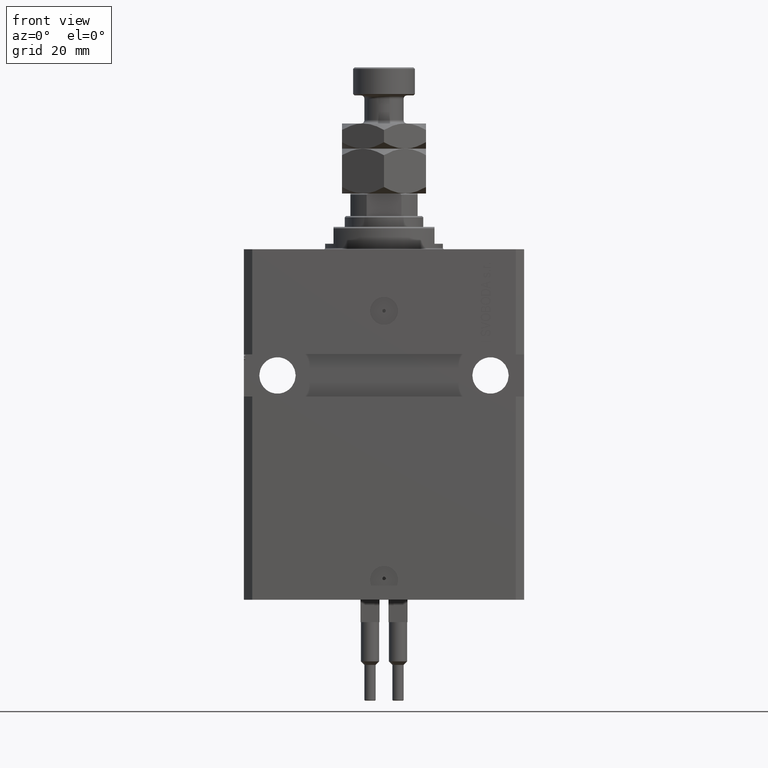
[diagram: clean part render]
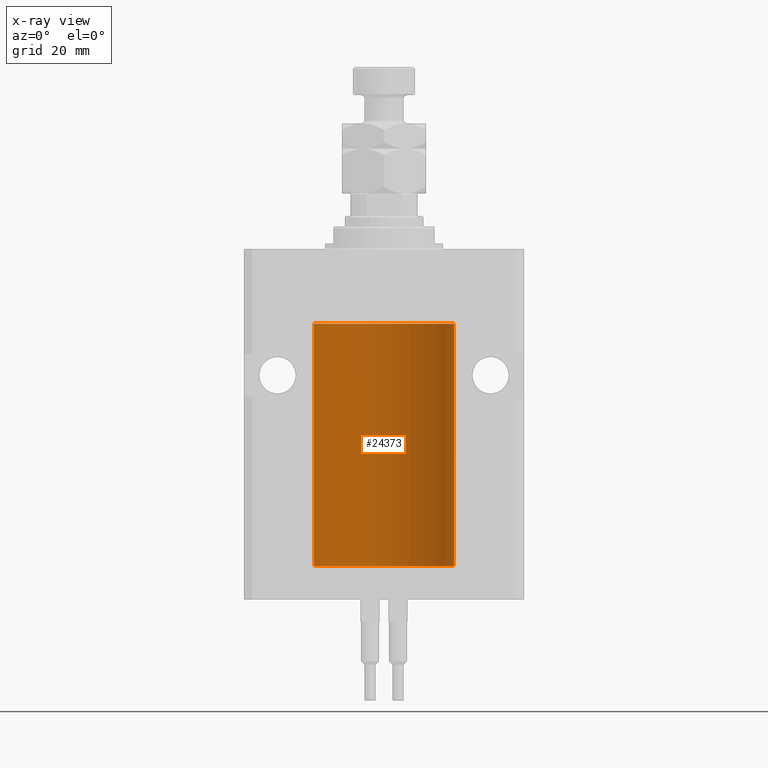
[diagram: x-ray — body ghosted, one internal face saturated and labeled with its STEP entity id]
A machine part, front view, then the same camera in x-ray: the body is ghosted and one INTERNAL B-rep face — a face not visible from any outside direction — is saturated and labeled: STEP entity #24373.
In plain terms, the highlighted cylindrical surface (partial cylindrical patch) has radius 25 mm, axis along (0, 0, 1).
Its self-contained STEP definition (entity closure, byte-faithful):
#28 = CYLINDRICAL_SURFACE ( 'NONE', #37523, 25.00000000000000000 ) ;
#214 = LINE ( 'NONE', #12274, #31589 ) ;
#538 = AXIS2_PLACEMENT_3D ( 'NONE', #3000, #34507, #50151 ) ;
#560 = CARTESIAN_POINT ( 'NONE',  ( 24.99999999999999645, 0.1631302137355208348, -109.8750000000001563 ) ) ;
#1071 = CARTESIAN_POINT ( 'NONE',  ( -25.00000000000000000, 3.061616997868383043E-15, -26.60000000000000142 ) ) ;
#1520 = CARTESIAN_POINT ( 'NONE',  ( -25.00000000000008171, 3.517566575222595158E-13, -111.1250000000032827 ) ) ;
#3000 = CARTESIAN_POINT ( 'NONE',  ( 0.000000000000000000, 0.000000000000000000, -26.60000000000000142 ) ) ;
#3467 = EDGE_CURVE ( 'NONE', #5423, #11215, #46912, .T. ) ;
#3471 = DIRECTION ( 'NONE',  ( 1.000000000000000000, 0.000000000000000000, 0.000000000000000000 ) ) ;
#3481 = CARTESIAN_POINT ( 'NONE',  ( -25.00000000000000000, -2.540720905424995806E-14, -109.8750000000000000 ) ) ;
#3567 = VERTEX_POINT ( 'NONE', #1520 ) ;
#3892 = CARTESIAN_POINT ( 'NONE',  ( 25.00000000000000000, -2.424731304940744339E-15, -111.1250000000000000 ) ) ;
#5423 = VERTEX_POINT ( 'NONE', #44088 ) ;
#6262 = EDGE_CURVE ( 'NONE', #5423, #10489, #11742, .T. ) ;
#6404 = CARTESIAN_POINT ( 'NONE',  ( -25.00000000000008171, 3.517566575222595158E-13, -111.1250000000032827 ) ) ;
#6682 = VECTOR ( 'NONE', #20162, 1000.000000000000000 ) ;
#6993 = VERTEX_POINT ( 'NONE', #3481 ) ;
#7092 = CIRCLE ( 'NONE', #538, 25.00000000000000000 ) ;
#7164 = CARTESIAN_POINT ( 'NONE',  ( -24.99218483271614843, 0.6250578298876445782, -110.6628443277814426 ) ) ;
#7247 = CARTESIAN_POINT ( 'NONE',  ( 25.00000000000008171, 3.486950403907965962E-13, -109.8749999999967315 ) ) ;
#7843 = CARTESIAN_POINT ( 'NONE',  ( 0.000000000000000000, 0.000000000000000000, -113.0999999999999943 ) ) ;
#7970 = DIRECTION ( 'NONE',  ( -0.000000000000000000, -0.000000000000000000, 1.000000000000000000 ) ) ;
#8572 = DIRECTION ( 'NONE',  ( -0.000000000000000000, -0.000000000000000000, 1.000000000000000000 ) ) ;
#10489 = VERTEX_POINT ( 'NONE', #18144 ) ;
#11020 = ORIENTED_EDGE ( 'NONE', *, *, #19414, .T. ) ;
#11215 = VERTEX_POINT ( 'NONE', #50493 ) ;
#11348 = CARTESIAN_POINT ( 'NONE',  ( 24.99812887437770570, 0.3150953964769092064, -111.0459460934856821 ) ) ;
#11742 = CIRCLE ( 'NONE', #39526, 25.00000000000000000 ) ;
#11862 = CARTESIAN_POINT ( 'NONE',  ( 24.99218627891524136, 0.6250000000003219647, -110.6631061550482826 ) ) ;
#12274 = CARTESIAN_POINT ( 'NONE',  ( -25.00000000000000000, 3.061616997868383043E-15, -113.0999999999999943 ) ) ;
#13550 = ORIENTED_EDGE ( 'NONE', *, *, #39318, .T. ) ;
#18079 = CARTESIAN_POINT ( 'NONE',  ( 25.00000000000000000, 0.000000000000000000, -26.60000000000000142 ) ) ;
#18144 = CARTESIAN_POINT ( 'NONE',  ( -25.00000000000000000, 3.061616997868383043E-15, -113.0999999999999943 ) ) ;
#18230 = EDGE_CURVE ( 'NONE', #10489, #3567, #214, .T. ) ;
#19165 = EDGE_CURVE ( 'NONE', #11215, #30935, #42016, .T. ) ;
#19298 = CARTESIAN_POINT ( 'NONE',  ( 24.99815573945175373, 0.3253059702579679247, -109.9414084843269279 ) ) ;
#19409 = CARTESIAN_POINT ( 'NONE',  ( -25.00000000000000000, 3.061616997868383043E-15, -113.0999999999999943 ) ) ;
#19414 = EDGE_CURVE ( 'NONE', #29174, #47754, #7092, .T. ) ;
#19467 = ORIENTED_EDGE ( 'NONE', *, *, #44779, .F. ) ;
#19703 = DIRECTION ( 'NONE',  ( -0.000000000000000000, -0.000000000000000000, 1.000000000000000000 ) ) ;
#19769 = FACE_OUTER_BOUND ( 'NONE', #50517, .T. ) ;
#19840 = VERTEX_POINT ( 'NONE', #22710 ) ;
#20042 = CARTESIAN_POINT ( 'NONE',  ( 24.99403021173655404, 0.5586305782632625672, -110.1747611144148635 ) ) ;
#20162 = DIRECTION ( 'NONE',  ( -0.000000000000000000, -0.000000000000000000, 1.000000000000000000 ) ) ;
#20283 = CARTESIAN_POINT ( 'NONE',  ( 24.99957883295564187, 0.1636780489658792026, -111.1087296133423479 ) ) ;
#22710 = CARTESIAN_POINT ( 'NONE',  ( 25.00000000000008171, 3.486950403907965962E-13, -109.8749999999967315 ) ) ;
#23237 = ORIENTED_EDGE ( 'NONE', *, *, #27291, .T. ) ;
#23382 = CARTESIAN_POINT ( 'NONE',  ( 24.99711042419772511, 0.3844422150124162108, -110.9994823321251971 ) ) ;
#23637 = CARTESIAN_POINT ( 'NONE',  ( 24.99405112861447265, 0.5574133879603476727, -110.8263877786898064 ) ) ;
#24004 = ORIENTED_EDGE ( 'NONE', *, *, #19165, .T. ) ;
#24373 = ADVANCED_FACE ( 'NONE', ( #19769 ), #28, .F. ) ;
#26388 = CARTESIAN_POINT ( 'NONE',  ( -24.99711159039963704, 0.3843660423108738455, -110.0004619305507561 ) ) ;
#26705 = CARTESIAN_POINT ( 'NONE',  ( 0.000000000000000000, 0.000000000000000000, -113.0999999999999943 ) ) ;
#26892 = CARTESIAN_POINT ( 'NONE',  ( -25.00000000000000000, 0.08259386895069686929, -109.8749999999999574 ) ) ;
#27291 = EDGE_CURVE ( 'NONE', #19840, #29174, #28033, .T. ) ;
#28033 = LINE ( 'NONE', #43651, #45698 ) ;
#29174 = VERTEX_POINT ( 'NONE', #18079 ) ;
#29428 = CARTESIAN_POINT ( 'NONE',  ( 24.99218627891505307, 0.6250000000082391871, -110.4999999999990763 ) ) ;
#30467 = CARTESIAN_POINT ( 'NONE',  ( -25.00000000000000000, -2.540720905424995806E-14, -109.8750000000000000 ) ) ;
#30935 = VERTEX_POINT ( 'NONE', #29428 ) ;
#30981 = CARTESIAN_POINT ( 'NONE',  ( -24.99999999999998579, 0.1631672031814571655, -111.1249999999998153 ) ) ;
#31040 = DIRECTION ( 'NONE',  ( -0.000000000000000000, -0.000000000000000000, 1.000000000000000000 ) ) ;
#31589 = VECTOR ( 'NONE', #19703, 1000.000000000000000 ) ;
#33206 = ORIENTED_EDGE ( 'NONE', *, *, #18230, .F. ) ;
#33501 = B_SPLINE_CURVE_WITH_KNOTS ( 'NONE', 3,
 ( #30467, #26892, #42506, #45856, #26388, #46113, #42253, #7164, #34818, #50466, #30981, #6404 ),
 .UNSPECIFIED., .F., .F.,
 ( 4, 2, 2, 2, 2, 4 ),
 ( 1.767227884924492832E-18, 0.0002442639708601802699, 0.0004885279417203586966, 0.0009770558834406861681, 0.001465583825161013640, 0.001954111766881341111 ),
 .UNSPECIFIED. ) ;
#34507 = DIRECTION ( 'NONE',  ( 0.000000000000000000, 0.000000000000000000, 1.000000000000000000 ) ) ;
#34818 = CARTESIAN_POINT ( 'NONE',  ( -24.99402840204668408, 0.5587119681668493154, -110.8251155587110475 ) ) ;
#34898 = CARTESIAN_POINT ( 'NONE',  ( 24.99218627891505307, 0.6250000000082391871, -110.4999999999990763 ) ) ;
#35368 = DIRECTION ( 'NONE',  ( 1.000000000000000000, 0.000000000000000000, 0.000000000000000000 ) ) ;
#35386 = CARTESIAN_POINT ( 'NONE',  ( 24.99218627891505307, 0.6250000000082391871, -110.4999999999990763 ) ) ;
#37522 = ORIENTED_EDGE ( 'NONE', *, *, #3467, .T. ) ;
#37523 = AXIS2_PLACEMENT_3D ( 'NONE', #26705, #31040, #35368 ) ;
#38305 = DIRECTION ( 'NONE',  ( 0.000000000000000000, 0.000000000000000000, 1.000000000000000000 ) ) ;
#39318 = EDGE_CURVE ( 'NONE', #30935, #19840, #47343, .T. ) ;
#39526 = AXIS2_PLACEMENT_3D ( 'NONE', #7843, #38305, #3471 ) ;
#39605 = LINE ( 'NONE', #19409, #6682 ) ;
#42016 = B_SPLINE_CURVE_WITH_KNOTS ( 'NONE', 3,
 ( #3892, #46691, #20283, #11348, #23382, #23637, #11862, #35386 ),
 .UNSPECIFIED., .F., .F.,
 ( 4, 2, 2, 4 ),
 ( 2.356374505740030593E-18, 0.0002443193446654823016, 0.0004886386893309623263, 0.0009772773786619218337 ),
 .UNSPECIFIED. ) ;
#42253 = CARTESIAN_POINT ( 'NONE',  ( -24.99218772708281122, 0.6249420913990271220, -110.3367120696675414 ) ) ;
#42435 = ORIENTED_EDGE ( 'NONE', *, *, #44422, .T. ) ;
#42506 = CARTESIAN_POINT ( 'NONE',  ( -24.99957903978828000, 0.1636401650351726467, -109.8912625904798546 ) ) ;
#43062 = CARTESIAN_POINT ( 'NONE',  ( 25.00000000000000000, 0.000000000000000000, -113.0999999999999943 ) ) ;
#43651 = CARTESIAN_POINT ( 'NONE',  ( 25.00000000000000000, 0.000000000000000000, -113.0999999999999943 ) ) ;
#44088 = CARTESIAN_POINT ( 'NONE',  ( 25.00000000000000000, 0.000000000000000000, -113.0999999999999943 ) ) ;
#44422 = EDGE_CURVE ( 'NONE', #6993, #3567, #33501, .T. ) ;
#44779 = EDGE_CURVE ( 'NONE', #6993, #47754, #39605, .T. ) ;
#45291 = VECTOR ( 'NONE', #7970, 1000.000000000000000 ) ;
#45698 = VECTOR ( 'NONE', #8572, 1000.000000000000000 ) ;
#45856 = CARTESIAN_POINT ( 'NONE',  ( -24.99812965334069759, 0.3150303239408709932, -109.9540190183167852 ) ) ;
#46113 = CARTESIAN_POINT ( 'NONE',  ( -24.99405295648007908, 0.5573304927633258021, -110.1734883293366920 ) ) ;
#46560 = ORIENTED_EDGE ( 'NONE', *, *, #6262, .F. ) ;
#46691 = CARTESIAN_POINT ( 'NONE',  ( 25.00000000000000355, 0.08261259269783381709, -111.1250000000000142 ) ) ;
#46912 = LINE ( 'NONE', #43062, #45291 ) ;
#46952 = CARTESIAN_POINT ( 'NONE',  ( 24.99218627891526268, 0.6249999999996124211, -110.3369677794013626 ) ) ;
#47343 = B_SPLINE_CURVE_WITH_KNOTS ( 'NONE', 3,
 ( #34898, #46952, #20042, #19298, #560, #7247 ),
 .UNSPECIFIED., .F., .F.,
 ( 4, 2, 4 ),
 ( 0.0009772773786619218337, 0.001465694572771605777, 0.001954111766881289937 ),
 .UNSPECIFIED. ) ;
#47754 = VERTEX_POINT ( 'NONE', #1071 ) ;
#50151 = DIRECTION ( 'NONE',  ( 1.000000000000000000, 0.000000000000000000, 0.000000000000000000 ) ) ;
#50466 = CARTESIAN_POINT ( 'NONE',  ( -24.99815474281802352, 0.3253832813992116324, -111.0585560939375114 ) ) ;
#50493 = CARTESIAN_POINT ( 'NONE',  ( 25.00000000000000000, -2.424731304940744339E-15, -111.1250000000000000 ) ) ;
#50517 = EDGE_LOOP ( 'NONE', ( #33206, #46560, #37522, #24004, #13550, #23237, #11020, #19467, #42435 ) ) ;